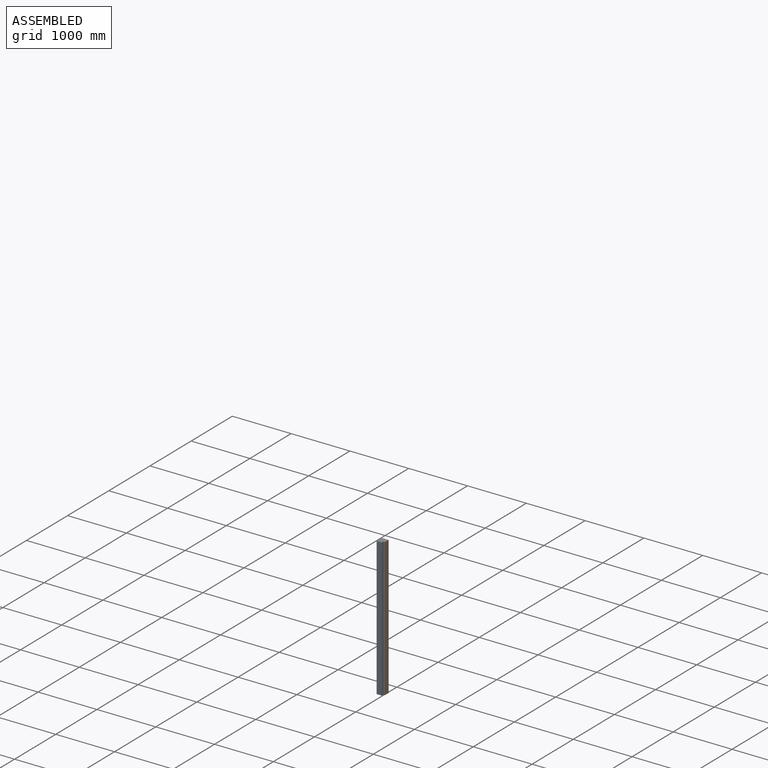
[diagram: assembled view]
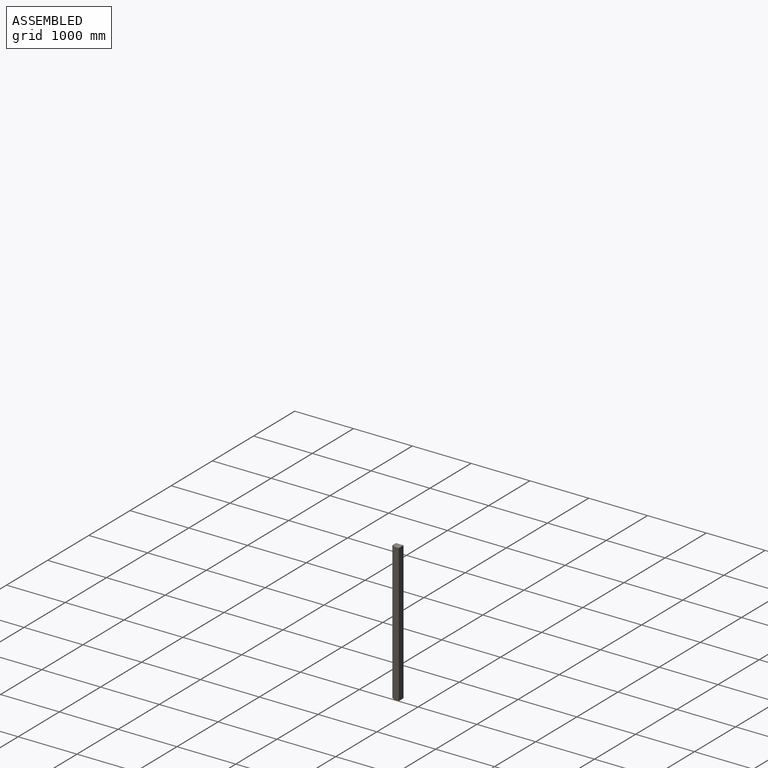
[diagram: assembled view, second angle]
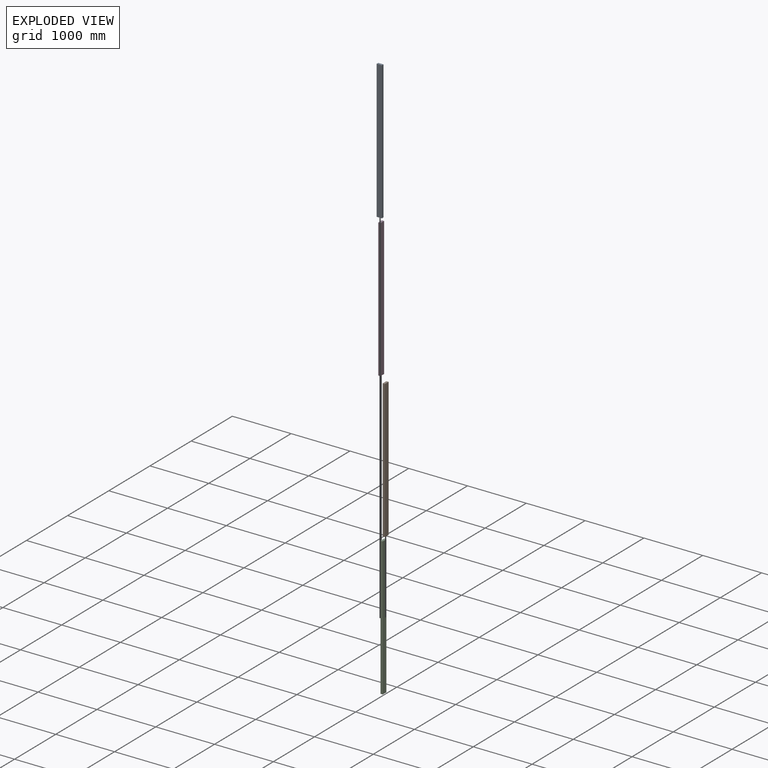
[diagram: exploded view]
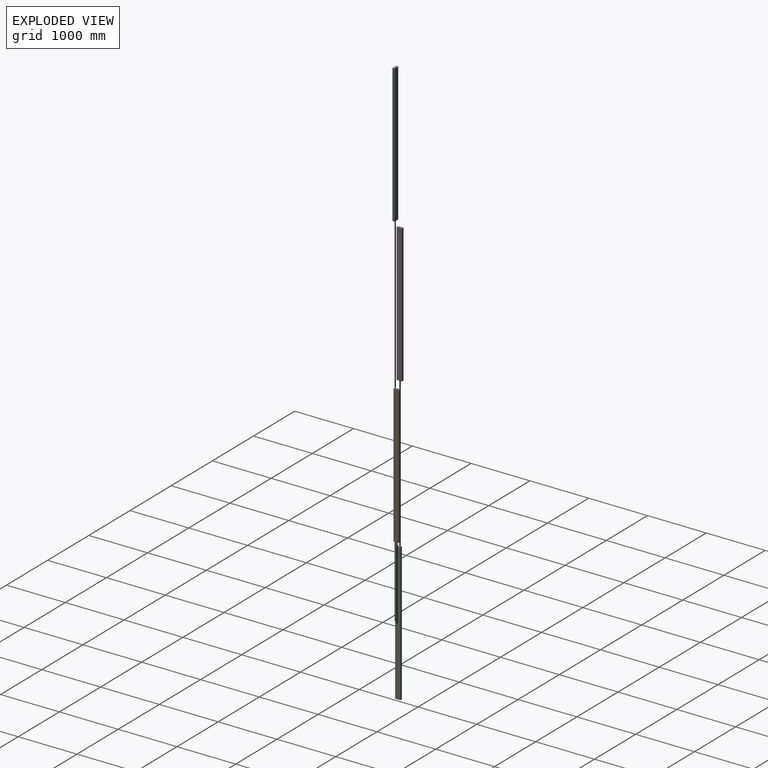
[diagram: exploded view, second angle]
ASSEMBLY  parts=4 mates=3
PART A: 6 faces, bbox 38.1x88.9x2352.7 mm
  f0: plane 2352.68x88.9mm, normal (1,0,0), area 209152.8mm2, adj f1,f3,f4,f5
  f1: plane 2352.68x38.1mm, normal (0,1,0), area 89636.9mm2, adj f0,f2,f4,f5
  f2: plane 2352.68x88.9mm, normal (-1,0,0), area 209152.8mm2, adj f1,f3,f4,f5
  f3: plane 2352.68x38.1mm, normal (0,-1,0), area 89636.9mm2, adj f0,f2,f4,f5
  f4: plane 88.9x38.1mm, normal (0,0,1), area 3387.1mm2, adj f0,f1,f2,f3
  f5: plane 88.9x38.1mm, normal (0,0,-1), area 3387.1mm2, adj f0,f1,f2,f3
PART B: same geometry as A
PART C: same geometry as A
PART D: same geometry as A
PLACE A rot(axis=(0,0,-1),90deg) t=(-679.33,571.11,0)mm
PLACE B t=(76.2,0,0)mm
PLACE C t=(38.1,0,0)mm
PLACE D at identity
MATE fastened C.f4 <-> D.f4  axis (0,0,1) through (-16.01,714.12,2352.68)mm
MATE fastened A.f4 <-> D.f4  axis (0,0,1) through (-54.11,625.22,2352.67)mm
MATE fastened B.f4 <-> C.f4  axis (0,0,1) through (22.09,714.12,2352.68)mm
